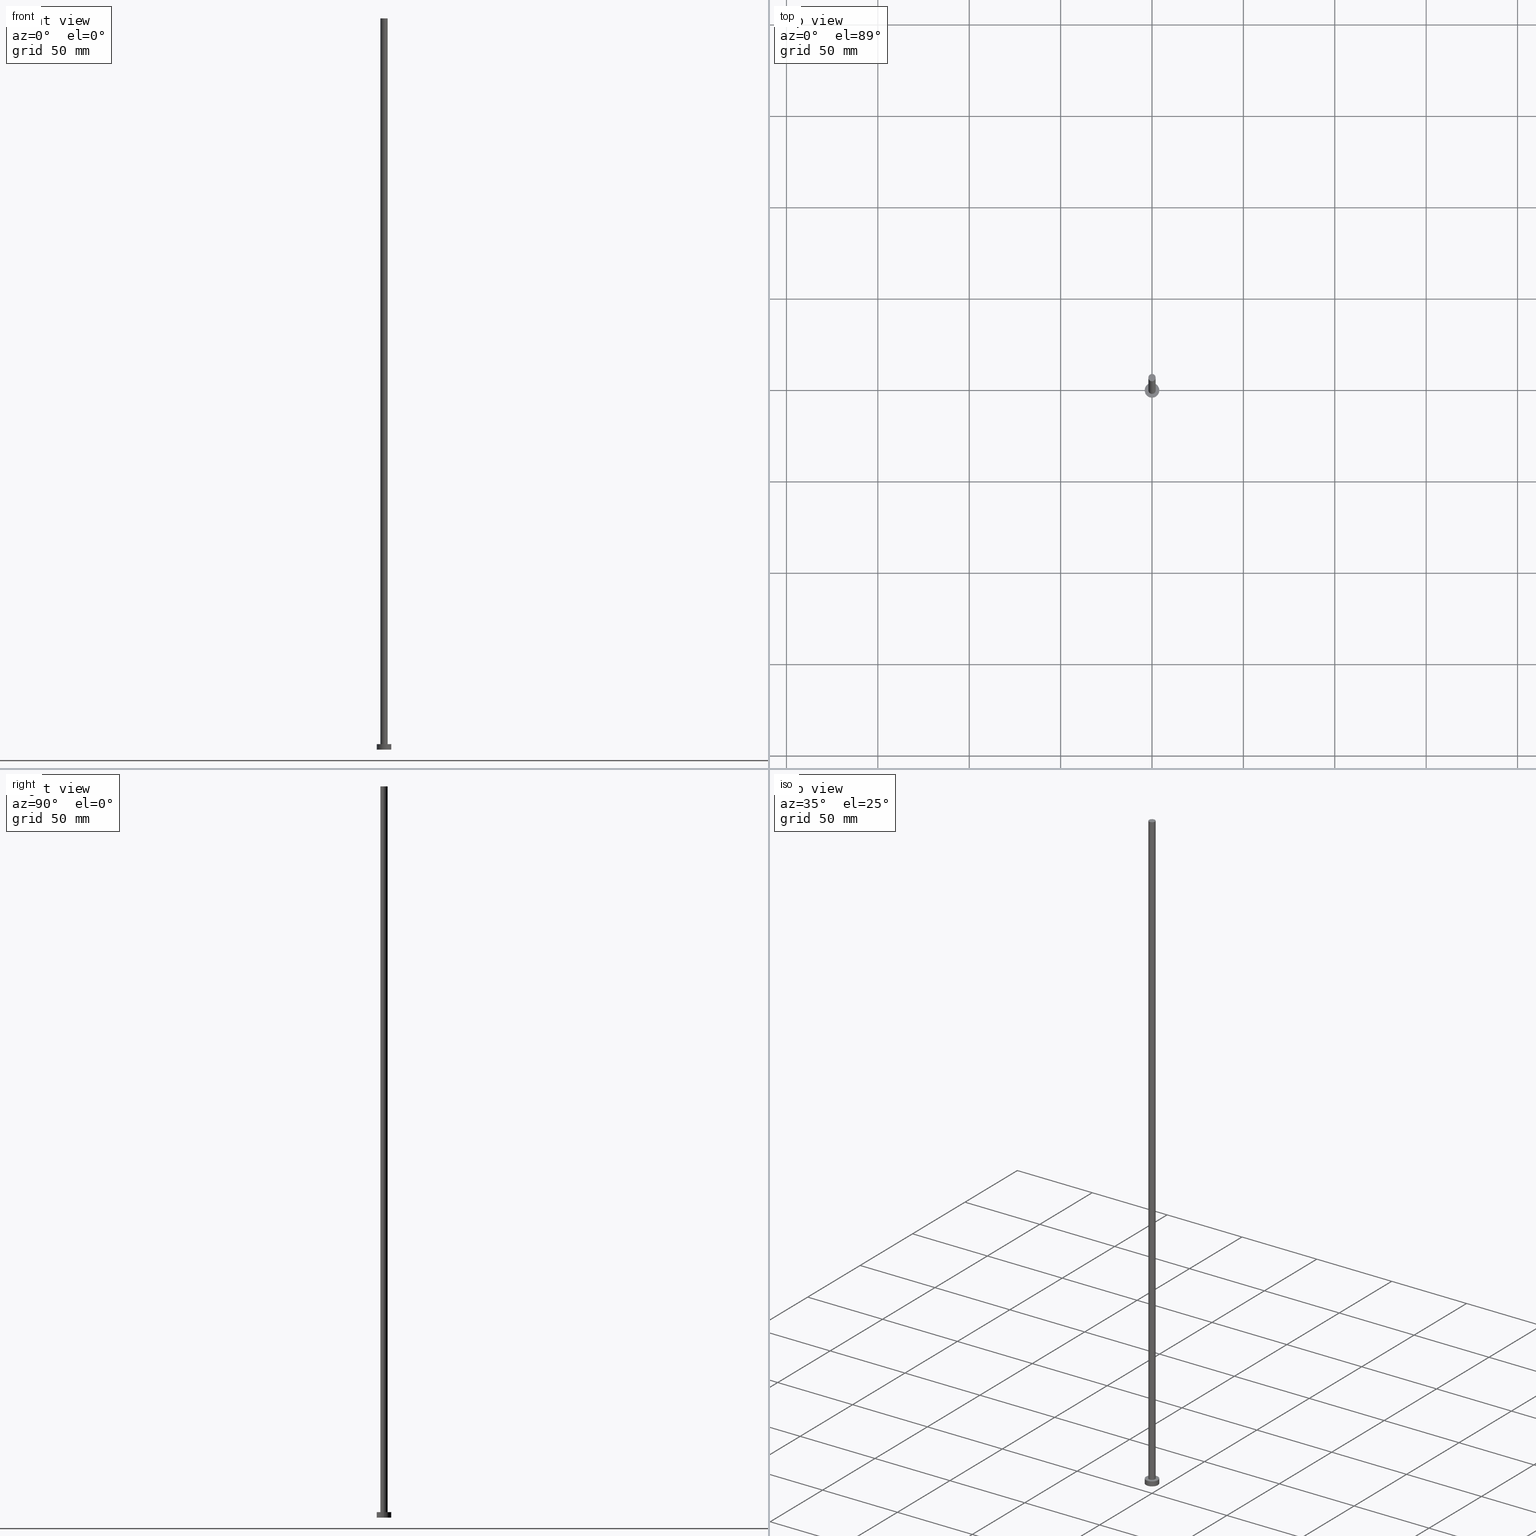
[diagram: canonical four-view strip — front | top / right | iso, engineering-drawing reading convention]
A machine part, canonical four-view strip (front | top / right | iso — engineering-drawing reading convention). The complete STEP part file that produces these views, byte-faithful:
ISO-10303-21;
HEADER;
FILE_DESCRIPTION (( 'STEP AP203' ),
    '1' );
FILE_NAME ('a0ca.STEP',
    '2023-02-13T16:09:34',
    ( '' ),
    ( '' ),
    'SwSTEP 2.0',
    'SolidWorks 2019',
    '' );
FILE_SCHEMA (( 'CONFIG_CONTROL_DESIGN' ));
ENDSEC;

DATA;
#1 =( GEOMETRIC_REPRESENTATION_CONTEXT ( 3 ) GLOBAL_UNCERTAINTY_ASSIGNED_CONTEXT ( ( #249 ) ) GLOBAL_UNIT_ASSIGNED_CONTEXT ( ( #240, #238, #160 ) ) REPRESENTATION_CONTEXT ( 'NONE', 'WORKASPACE' ) );
#2 = PLANE ( 'NONE',  #74 ) ;
#3 = ORIENTED_EDGE ( 'NONE', *, *, #131, .T. ) ;
#4 = DIRECTION ( 'NONE',  ( 0.000000000000000000, 0.000000000000000000, 1.000000000000000000 ) ) ;
#5 = DIRECTION ( 'NONE',  ( -1.000000000000000000, 0.000000000000000000, 0.000000000000000000 ) ) ;
#6 = CARTESIAN_POINT ( 'NONE',  ( 0.000000000000000000, 0.000000000000000000, 0.000000000000000000 ) ) ;
#7 = CC_DESIGN_APPROVAL ( #96, ( #117 ) ) ;
#8 = DIRECTION ( 'NONE',  ( -0.000000000000000000, -0.000000000000000000, -1.000000000000000000 ) ) ;
#9 = PRODUCT_DEFINITION_SHAPE ( 'NONE', 'NONE',  #117 ) ;
#10 = VECTOR ( 'NONE', #70, 1000.000000000000000 ) ;
#11 = LINE ( 'NONE', #72, #87 ) ;
#12 = PERSON_AND_ORGANIZATION_ROLE ( 'design_supplier' ) ;
#13 = PERSON ( 'NEUR�EN�', 'NEUR�EN�', 'NEUR�EN�', ('NEUR�EN�'), ('NEUR�EN�'), ('NEUR�EN�') ) ;
#14 = AXIS2_PLACEMENT_3D ( 'NONE', #6, #64, #84 ) ;
#15 = EDGE_CURVE ( 'NONE', #120, #63, #11, .T. ) ;
#16 = CIRCLE ( 'NONE', #163, 2.000000000000000000 ) ;
#17 = CARTESIAN_POINT ( 'NONE',  ( 0.000000000000000000, 0.000000000000000000, 400.0000000000000000 ) ) ;
#18 = ORIENTED_EDGE ( 'NONE', *, *, #175, .T. ) ;
#19 = DIRECTION ( 'NONE',  ( -0.000000000000000000, -0.000000000000000000, -1.000000000000000000 ) ) ;
#20 = ORIENTED_EDGE ( 'NONE', *, *, #154, .T. ) ;
#21 = ORIENTED_EDGE ( 'NONE', *, *, #184, .F. ) ;
#22 = CARTESIAN_POINT ( 'NONE',  ( 4.000000000000000000, 4.898587196589412829E-16, 0.000000000000000000 ) ) ;
#23 = ORIENTED_EDGE ( 'NONE', *, *, #236, .T. ) ;
#24 = CALENDAR_DATE ( 2023, 13, 2 ) ;
#25 = ORGANIZATION ( 'NEUR�EN�', 'NEUR�EN�', '' ) ;
#26 = APPROVAL_PERSON_ORGANIZATION ( #32, #230, #225 ) ;
#27 = DIRECTION ( 'NONE',  ( -1.000000000000000000, 0.000000000000000000, 0.000000000000000000 ) ) ;
#28 = AXIS2_PLACEMENT_3D ( 'NONE', #244, #203, #27 ) ;
#29 = CARTESIAN_POINT ( 'NONE',  ( 0.000000000000000000, 0.000000000000000000, 3.000000000000000000 ) ) ;
#30 = EDGE_LOOP ( 'NONE', ( #33, #42 ) ) ;
#31 = CC_DESIGN_PERSON_AND_ORGANIZATION_ASSIGNMENT ( #104, #243, ( #117 ) ) ;
#32 = PERSON_AND_ORGANIZATION ( #13, #25 ) ;
#33 = ORIENTED_EDGE ( 'NONE', *, *, #192, .T. ) ;
#34 = SHAPE_DEFINITION_REPRESENTATION ( #9, #186 ) ;
#35 = CYLINDRICAL_SURFACE ( 'NONE', #150, 4.000000000000000000 ) ;
#36 = CALENDAR_DATE ( 2023, 13, 2 ) ;
#37 = SECURITY_CLASSIFICATION_LEVEL ( 'unclassified' ) ;
#38 = EDGE_CURVE ( 'NONE', #80, #115, #97, .T. ) ;
#39 = DIRECTION ( 'NONE',  ( 0.000000000000000000, 0.000000000000000000, 1.000000000000000000 ) ) ;
#40 = CC_DESIGN_PERSON_AND_ORGANIZATION_ASSIGNMENT ( #248, #169, ( #56 ) ) ;
#41 = CC_DESIGN_SECURITY_CLASSIFICATION ( #56, ( #59 ) ) ;
#42 = ORIENTED_EDGE ( 'NONE', *, *, #184, .T. ) ;
#43 = FACE_OUTER_BOUND ( 'NONE', #106, .T. ) ;
#44 = ORIENTED_EDGE ( 'NONE', *, *, #236, .F. ) ;
#45 = PLANE ( 'NONE',  #94 ) ;
#46 = MECHANICAL_CONTEXT ( 'NONE', #161, 'mechanical' ) ;
#47 = CIRCLE ( 'NONE', #217, 4.000000000000000000 ) ;
#48 = ADVANCED_FACE ( 'NONE', ( #51 ), #35, .T. ) ;
#49 = VERTEX_POINT ( 'NONE', #165 ) ;
#50 = PERSON_AND_ORGANIZATION ( #13, #25 ) ;
#51 = FACE_OUTER_BOUND ( 'NONE', #178, .T. ) ;
#52 = CARTESIAN_POINT ( 'NONE',  ( 0.000000000000000000, 0.000000000000000000, 3.000000000000000000 ) ) ;
#53 = AXIS2_PLACEMENT_3D ( 'NONE', #146, #224, #187 ) ;
#54 = DIRECTION ( 'NONE',  ( 1.000000000000000000, 0.000000000000000000, 0.000000000000000000 ) ) ;
#55 = LINE ( 'NONE', #208, #138 ) ;
#56 = SECURITY_CLASSIFICATION ( '', '', #37 ) ;
#57 = CYLINDRICAL_SURFACE ( 'NONE', #28, 2.000000000000000000 ) ;
#58 = DIRECTION ( 'NONE',  ( 1.000000000000000000, 0.000000000000000000, -0.000000000000000000 ) ) ;
#59 = PRODUCT_DEFINITION_FORMATION_WITH_SPECIFIED_SOURCE ( 'LIBOVOLN�', '', #149, .NOT_KNOWN. ) ;
#60 = ORIENTED_EDGE ( 'NONE', *, *, #136, .F. ) ;
#61 = ORIENTED_EDGE ( 'NONE', *, *, #82, .F. ) ;
#62 = FACE_OUTER_BOUND ( 'NONE', #66, .T. ) ;
#63 = VERTEX_POINT ( 'NONE', #132 ) ;
#64 = DIRECTION ( 'NONE',  ( 0.000000000000000000, 0.000000000000000000, 1.000000000000000000 ) ) ;
#65 = APPROVAL ( #139, 'NEUR�EN�' ) ;
#66 = EDGE_LOOP ( 'NONE', ( #159, #3 ) ) ;
#67 = APPROVAL_ROLE ( '' ) ;
#68 = DIRECTION ( 'NONE',  ( 1.000000000000000000, 0.000000000000000000, 0.000000000000000000 ) ) ;
#69 = DATE_AND_TIME ( #188, #190 ) ;
#70 = DIRECTION ( 'NONE',  ( -0.000000000000000000, -0.000000000000000000, -1.000000000000000000 ) ) ;
#71 = DATE_AND_TIME ( #36, #109 ) ;
#72 = CARTESIAN_POINT ( 'NONE',  ( 2.000000000000000000, 2.449293598294706414E-16, 400.0000000000000000 ) ) ;
#73 = FACE_OUTER_BOUND ( 'NONE', #214, .T. ) ;
#74 = AXIS2_PLACEMENT_3D ( 'NONE', #29, #181, #220 ) ;
#75 = CALENDAR_DATE ( 2023, 13, 2 ) ;
#76 = ADVANCED_FACE ( 'NONE', ( #73 ), #57, .T. ) ;
#77 = CARTESIAN_POINT ( 'NONE',  ( 0.000000000000000000, 0.000000000000000000, 3.000000000000000000 ) ) ;
#78 = DIRECTION ( 'NONE',  ( 1.000000000000000000, 0.000000000000000000, 0.000000000000000000 ) ) ;
#79 = CC_DESIGN_PERSON_AND_ORGANIZATION_ASSIGNMENT ( #228, #12, ( #59 ) ) ;
#80 = VERTEX_POINT ( 'NONE', #88 ) ;
#81 = DATE_AND_TIME ( #86, #172 ) ;
#82 = EDGE_CURVE ( 'NONE', #83, #49, #105, .T. ) ;
#83 = VERTEX_POINT ( 'NONE', #209 ) ;
#84 = DIRECTION ( 'NONE',  ( 1.000000000000000000, 0.000000000000000000, 0.000000000000000000 ) ) ;
#85 = ORIENTED_EDGE ( 'NONE', *, *, #151, .T. ) ;
#86 = CALENDAR_DATE ( 2023, 13, 2 ) ;
#87 = VECTOR ( 'NONE', #130, 1000.000000000000000 ) ;
#88 = CARTESIAN_POINT ( 'NONE',  ( -4.000000000000000000, 0.000000000000000000, 3.000000000000000000 ) ) ;
#89 = DIRECTION ( 'NONE',  ( 0.000000000000000000, 0.000000000000000000, 1.000000000000000000 ) ) ;
#90 = APPROVAL_DATE_TIME ( #152, #230 ) ;
#91 = DIRECTION ( 'NONE',  ( 0.000000000000000000, 0.000000000000000000, 1.000000000000000000 ) ) ;
#92 = EDGE_CURVE ( 'NONE', #80, #140, #148, .T. ) ;
#93 = CARTESIAN_POINT ( 'NONE',  ( 2.000000000000000000, 2.449293598294706414E-16, 400.0000000000000000 ) ) ;
#94 = AXIS2_PLACEMENT_3D ( 'NONE', #185, #142, #235 ) ;
#95 = AXIS2_PLACEMENT_3D ( 'NONE', #155, #39, #116 ) ;
#96 = APPROVAL ( #166, 'NEUR�EN�' ) ;
#97 = CIRCLE ( 'NONE', #53, 4.000000000000000000 ) ;
#98 = CC_DESIGN_PERSON_AND_ORGANIZATION_ASSIGNMENT ( #158, #133, ( #59 ) ) ;
#99 = ORIENTED_EDGE ( 'NONE', *, *, #38, .F. ) ;
#100 = ORIENTED_EDGE ( 'NONE', *, *, #136, .T. ) ;
#101 = ORIENTED_EDGE ( 'NONE', *, *, #15, .T. ) ;
#102 = DATE_TIME_ROLE ( 'creation_date' ) ;
#103 = EDGE_LOOP ( 'NONE', ( #118, #245 ) ) ;
#104 = PERSON_AND_ORGANIZATION ( #13, #25 ) ;
#105 = LINE ( 'NONE', #108, #251 ) ;
#106 = EDGE_LOOP ( 'NONE', ( #156, #253, #167, #20 ) ) ;
#107 = APPLICATION_PROTOCOL_DEFINITION ( 'international standard', 'config_control_design', 1994, #232 ) ;
#108 = CARTESIAN_POINT ( 'NONE',  ( -2.000000000000000000, 0.000000000000000000, 400.0000000000000000 ) ) ;
#109 = LOCAL_TIME ( 17, 9, 34.00000000000000000, #223 ) ;
#110 = DIRECTION ( 'NONE',  ( -0.000000000000000000, -0.000000000000000000, -1.000000000000000000 ) ) ;
#111 = CC_DESIGN_PERSON_AND_ORGANIZATION_ASSIGNMENT ( #50, #126, ( #149 ) ) ;
#112 = CARTESIAN_POINT ( 'NONE',  ( -4.000000000000000000, 0.000000000000000000, 3.000000000000000000 ) ) ;
#113 = DESIGN_CONTEXT ( 'detailed design', #232, 'design' ) ;
#114 = CYLINDRICAL_SURFACE ( 'NONE', #182, 2.000000000000000000 ) ;
#115 = VERTEX_POINT ( 'NONE', #143 ) ;
#116 = DIRECTION ( 'NONE',  ( 1.000000000000000000, 0.000000000000000000, 0.000000000000000000 ) ) ;
#117 = PRODUCT_DEFINITION ( 'NEZN�M�', '', #59, #113 ) ;
#118 = ORIENTED_EDGE ( 'NONE', *, *, #151, .F. ) ;
#119 = FACE_BOUND ( 'NONE', #137, .T. ) ;
#120 = VERTEX_POINT ( 'NONE', #93 ) ;
#121 = PERSON_AND_ORGANIZATION ( #13, #25 ) ;
#122 = COORDINATED_UNIVERSAL_TIME_OFFSET ( 1, 0, .AHEAD. ) ;
#123 = FACE_OUTER_BOUND ( 'NONE', #199, .T. ) ;
#124 = COORDINATED_UNIVERSAL_TIME_OFFSET ( 1, 0, .AHEAD. ) ;
#125 = DIRECTION ( 'NONE',  ( -1.000000000000000000, 0.000000000000000000, 0.000000000000000000 ) ) ;
#126 = PERSON_AND_ORGANIZATION_ROLE ( 'design_owner' ) ;
#127 = CARTESIAN_POINT ( 'NONE',  ( 0.000000000000000000, 0.000000000000000000, 3.000000000000000000 ) ) ;
#128 = DATE_TIME_ROLE ( 'classification_date' ) ;
#129 = AXIS2_PLACEMENT_3D ( 'NONE', #52, #4, #183 ) ;
#130 = DIRECTION ( 'NONE',  ( -0.000000000000000000, -0.000000000000000000, -1.000000000000000000 ) ) ;
#131 = EDGE_CURVE ( 'NONE', #115, #80, #47, .T. ) ;
#132 = CARTESIAN_POINT ( 'NONE',  ( 2.000000000000000000, 2.449293598294706414E-16, 3.000000000000000000 ) ) ;
#133 = PERSON_AND_ORGANIZATION_ROLE ( 'creator' ) ;
#134 = CC_DESIGN_DATE_AND_TIME_ASSIGNMENT ( #71, #128, ( #56 ) ) ;
#135 = DIRECTION ( 'NONE',  ( 0.000000000000000000, 0.000000000000000000, 1.000000000000000000 ) ) ;
#136 = EDGE_CURVE ( 'NONE', #115, #234, #55, .T. ) ;
#137 = EDGE_LOOP ( 'NONE', ( #237, #44 ) ) ;
#138 = VECTOR ( 'NONE', #110, 1000.000000000000000 ) ;
#139 = APPROVAL_STATUS ( 'not_yet_approved' ) ;
#140 = VERTEX_POINT ( 'NONE', #250 ) ;
#141 = DIRECTION ( 'NONE',  ( 1.000000000000000000, 0.000000000000000000, 0.000000000000000000 ) ) ;
#142 = DIRECTION ( 'NONE',  ( 0.000000000000000000, 0.000000000000000000, 1.000000000000000000 ) ) ;
#143 = CARTESIAN_POINT ( 'NONE',  ( 4.000000000000000000, 4.898587196589412829E-16, 3.000000000000000000 ) ) ;
#144 = APPROVAL_STATUS ( 'not_yet_approved' ) ;
#145 = CC_DESIGN_DATE_AND_TIME_ASSIGNMENT ( #205, #102, ( #117 ) ) ;
#146 = CARTESIAN_POINT ( 'NONE',  ( 0.000000000000000000, 0.000000000000000000, 3.000000000000000000 ) ) ;
#147 = AXIS2_PLACEMENT_3D ( 'NONE', #204, #89, #171 ) ;
#148 = LINE ( 'NONE', #112, #10 ) ;
#149 = PRODUCT ( 'a0ca', 'a0ca', '', ( #46 ) ) ;
#150 = AXIS2_PLACEMENT_3D ( 'NONE', #127, #174, #5 ) ;
#151 = EDGE_CURVE ( 'NONE', #140, #234, #239, .T. ) ;
#152 = DATE_AND_TIME ( #75, #196 ) ;
#153 = APPROVAL_PERSON_ORGANIZATION ( #162, #65, #202 ) ;
#154 = EDGE_CURVE ( 'NONE', #49, #63, #16, .T. ) ;
#155 = CARTESIAN_POINT ( 'NONE',  ( 0.000000000000000000, 0.000000000000000000, 400.0000000000000000 ) ) ;
#156 = ORIENTED_EDGE ( 'NONE', *, *, #15, .F. ) ;
#157 = ADVANCED_FACE ( 'NONE', ( #123 ), #219, .T. ) ;
#158 = PERSON_AND_ORGANIZATION ( #13, #25 ) ;
#159 = ORIENTED_EDGE ( 'NONE', *, *, #38, .T. ) ;
#160 =( NAMED_UNIT ( * ) SI_UNIT ( $, .STERADIAN. ) SOLID_ANGLE_UNIT ( ) );
#161 = APPLICATION_CONTEXT ( 'configuration controlled 3d designs of mechanical parts and assemblies' ) ;
#162 = PERSON_AND_ORGANIZATION ( #13, #25 ) ;
#163 = AXIS2_PLACEMENT_3D ( 'NONE', #77, #194, #141 ) ;
#164 = APPROVAL_DATE_TIME ( #81, #96 ) ;
#165 = CARTESIAN_POINT ( 'NONE',  ( -2.000000000000000000, 0.000000000000000000, 3.000000000000000000 ) ) ;
#166 = APPROVAL_STATUS ( 'not_yet_approved' ) ;
#167 = ORIENTED_EDGE ( 'NONE', *, *, #82, .T. ) ;
#168 = PRODUCT_RELATED_PRODUCT_CATEGORY ( 'detail', '', ( #149 ) ) ;
#169 = PERSON_AND_ORGANIZATION_ROLE ( 'classification_officer' ) ;
#170 = ORIENTED_EDGE ( 'NONE', *, *, #92, .F. ) ;
#171 = DIRECTION ( 'NONE',  ( 1.000000000000000000, 0.000000000000000000, 0.000000000000000000 ) ) ;
#172 = LOCAL_TIME ( 17, 9, 34.00000000000000000, #122 ) ;
#173 = AXIS2_PLACEMENT_3D ( 'NONE', #222, #191, #54 ) ;
#174 = DIRECTION ( 'NONE',  ( -0.000000000000000000, -0.000000000000000000, -1.000000000000000000 ) ) ;
#175 = EDGE_CURVE ( 'NONE', #234, #140, #229, .T. ) ;
#176 = AXIS2_PLACEMENT_3D ( 'NONE', #17, #135, #78 ) ;
#177 = CARTESIAN_POINT ( 'NONE',  ( 0.000000000000000000, 0.000000000000000000, 400.0000000000000000 ) ) ;
#178 = EDGE_LOOP ( 'NONE', ( #60, #99, #198, #85 ) ) ;
#179 = ADVANCED_FACE ( 'NONE', ( #246 ), #233, .F. ) ;
#180 = CLOSED_SHELL ( 'NONE', ( #76, #157, #48, #221, #179, #206, #215 ) ) ;
#181 = DIRECTION ( 'NONE',  ( 0.000000000000000000, 0.000000000000000000, 1.000000000000000000 ) ) ;
#182 = AXIS2_PLACEMENT_3D ( 'NONE', #177, #19, #252 ) ;
#183 = DIRECTION ( 'NONE',  ( 1.000000000000000000, 0.000000000000000000, 0.000000000000000000 ) ) ;
#184 = EDGE_CURVE ( 'NONE', #120, #83, #201, .T. ) ;
#185 = CARTESIAN_POINT ( 'NONE',  ( 0.000000000000000000, 0.000000000000000000, 400.0000000000000000 ) ) ;
#186 = ADVANCED_BREP_SHAPE_REPRESENTATION ( 'a0ca', ( #231, #14 ), #1 ) ;
#187 = DIRECTION ( 'NONE',  ( 1.000000000000000000, 0.000000000000000000, 0.000000000000000000 ) ) ;
#188 = CALENDAR_DATE ( 2023, 13, 2 ) ;
#189 = APPROVAL_DATE_TIME ( #69, #65 ) ;
#190 = LOCAL_TIME ( 17, 9, 34.00000000000000000, #124 ) ;
#191 = DIRECTION ( 'NONE',  ( 0.000000000000000000, 0.000000000000000000, 1.000000000000000000 ) ) ;
#192 = EDGE_CURVE ( 'NONE', #83, #120, #247, .T. ) ;
#193 = COORDINATED_UNIVERSAL_TIME_OFFSET ( 1, 0, .AHEAD. ) ;
#194 = DIRECTION ( 'NONE',  ( 0.000000000000000000, 0.000000000000000000, 1.000000000000000000 ) ) ;
#195 = AXIS2_PLACEMENT_3D ( 'NONE', #207, #8, #125 ) ;
#196 = LOCAL_TIME ( 17, 9, 34.00000000000000000, #193 ) ;
#197 = CC_DESIGN_APPROVAL ( #65, ( #59 ) ) ;
#198 = ORIENTED_EDGE ( 'NONE', *, *, #92, .T. ) ;
#199 = EDGE_LOOP ( 'NONE', ( #213, #100, #18, #170 ) ) ;
#200 = COORDINATED_UNIVERSAL_TIME_OFFSET ( 1, 0, .AHEAD. ) ;
#201 = CIRCLE ( 'NONE', #176, 2.000000000000000000 ) ;
#202 = APPROVAL_ROLE ( '' ) ;
#203 = DIRECTION ( 'NONE',  ( -0.000000000000000000, -0.000000000000000000, -1.000000000000000000 ) ) ;
#204 = CARTESIAN_POINT ( 'NONE',  ( 0.000000000000000000, 0.000000000000000000, 0.000000000000000000 ) ) ;
#205 = DATE_AND_TIME ( #24, #210 ) ;
#206 = ADVANCED_FACE ( 'NONE', ( #43 ), #114, .T. ) ;
#207 = CARTESIAN_POINT ( 'NONE',  ( 0.000000000000000000, 0.000000000000000000, 3.000000000000000000 ) ) ;
#208 = CARTESIAN_POINT ( 'NONE',  ( 4.000000000000000000, 4.898587196589412829E-16, 3.000000000000000000 ) ) ;
#209 = CARTESIAN_POINT ( 'NONE',  ( -2.000000000000000000, 0.000000000000000000, 400.0000000000000000 ) ) ;
#210 = LOCAL_TIME ( 17, 9, 34.00000000000000000, #200 ) ;
#211 = AXIS2_PLACEMENT_3D ( 'NONE', #212, #254, #58 ) ;
#212 = CARTESIAN_POINT ( 'NONE',  ( 0.000000000000000000, 0.000000000000000000, 0.000000000000000000 ) ) ;
#213 = ORIENTED_EDGE ( 'NONE', *, *, #131, .F. ) ;
#214 = EDGE_LOOP ( 'NONE', ( #21, #101, #23, #61 ) ) ;
#215 = ADVANCED_FACE ( 'NONE', ( #216 ), #45, .T. ) ;
#216 = FACE_OUTER_BOUND ( 'NONE', #30, .T. ) ;
#217 = AXIS2_PLACEMENT_3D ( 'NONE', #241, #91, #68 ) ;
#218 = APPLICATION_PROTOCOL_DEFINITION ( 'international standard', 'config_control_design', 1994, #161 ) ;
#219 = CYLINDRICAL_SURFACE ( 'NONE', #195, 4.000000000000000000 ) ;
#220 = DIRECTION ( 'NONE',  ( 1.000000000000000000, 0.000000000000000000, -0.000000000000000000 ) ) ;
#221 = ADVANCED_FACE ( 'NONE', ( #119, #62 ), #2, .T. ) ;
#222 = CARTESIAN_POINT ( 'NONE',  ( 0.000000000000000000, 0.000000000000000000, 0.000000000000000000 ) ) ;
#223 = COORDINATED_UNIVERSAL_TIME_OFFSET ( 1, 0, .AHEAD. ) ;
#224 = DIRECTION ( 'NONE',  ( 0.000000000000000000, 0.000000000000000000, 1.000000000000000000 ) ) ;
#225 = APPROVAL_ROLE ( '' ) ;
#226 = CIRCLE ( 'NONE', #129, 2.000000000000000000 ) ;
#227 = DIRECTION ( 'NONE',  ( -0.000000000000000000, -0.000000000000000000, -1.000000000000000000 ) ) ;
#228 = PERSON_AND_ORGANIZATION ( #13, #25 ) ;
#229 = CIRCLE ( 'NONE', #147, 4.000000000000000000 ) ;
#230 = APPROVAL ( #144, 'NEUR�EN�' ) ;
#231 = MANIFOLD_SOLID_BREP ( 'P�idat vysunut�m3', #180 ) ;
#232 = APPLICATION_CONTEXT ( 'configuration controlled 3d designs of mechanical parts and assemblies' ) ;
#233 = PLANE ( 'NONE',  #211 ) ;
#234 = VERTEX_POINT ( 'NONE', #22 ) ;
#235 = DIRECTION ( 'NONE',  ( 1.000000000000000000, 0.000000000000000000, -0.000000000000000000 ) ) ;
#236 = EDGE_CURVE ( 'NONE', #63, #49, #226, .T. ) ;
#237 = ORIENTED_EDGE ( 'NONE', *, *, #154, .F. ) ;
#238 =( NAMED_UNIT ( * ) PLANE_ANGLE_UNIT ( ) SI_UNIT ( $, .RADIAN. ) );
#239 = CIRCLE ( 'NONE', #173, 4.000000000000000000 ) ;
#240 =( LENGTH_UNIT ( ) NAMED_UNIT ( * ) SI_UNIT ( .MILLI., .METRE. ) );
#241 = CARTESIAN_POINT ( 'NONE',  ( 0.000000000000000000, 0.000000000000000000, 3.000000000000000000 ) ) ;
#242 = CC_DESIGN_APPROVAL ( #230, ( #56 ) ) ;
#243 = PERSON_AND_ORGANIZATION_ROLE ( 'creator' ) ;
#244 = CARTESIAN_POINT ( 'NONE',  ( 0.000000000000000000, 0.000000000000000000, 400.0000000000000000 ) ) ;
#245 = ORIENTED_EDGE ( 'NONE', *, *, #175, .F. ) ;
#246 = FACE_OUTER_BOUND ( 'NONE', #103, .T. ) ;
#247 = CIRCLE ( 'NONE', #95, 2.000000000000000000 ) ;
#248 = PERSON_AND_ORGANIZATION ( #13, #25 ) ;
#249 = UNCERTAINTY_MEASURE_WITH_UNIT (LENGTH_MEASURE( 1.000000000000000082E-05 ), #240, 'distance_accuracy_value', 'NONE');
#250 = CARTESIAN_POINT ( 'NONE',  ( -4.000000000000000000, 0.000000000000000000, 0.000000000000000000 ) ) ;
#251 = VECTOR ( 'NONE', #227, 1000.000000000000000 ) ;
#252 = DIRECTION ( 'NONE',  ( -1.000000000000000000, 0.000000000000000000, 0.000000000000000000 ) ) ;
#253 = ORIENTED_EDGE ( 'NONE', *, *, #192, .F. ) ;
#254 = DIRECTION ( 'NONE',  ( 0.000000000000000000, 0.000000000000000000, 1.000000000000000000 ) ) ;
#255 = APPROVAL_PERSON_ORGANIZATION ( #121, #96, #67 ) ;
ENDSEC;
END-ISO-10303-21;
